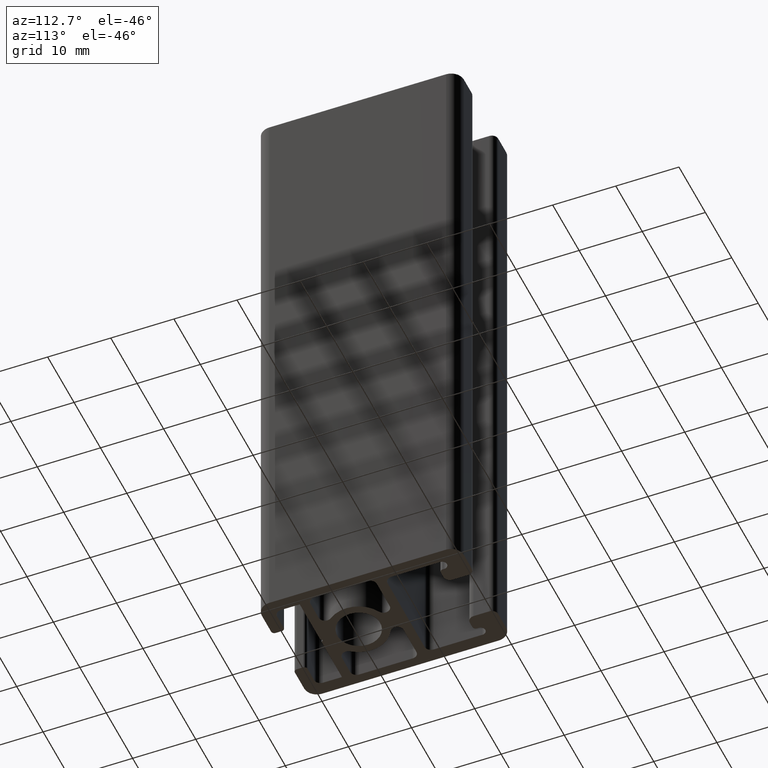
[diagram: clean part render]
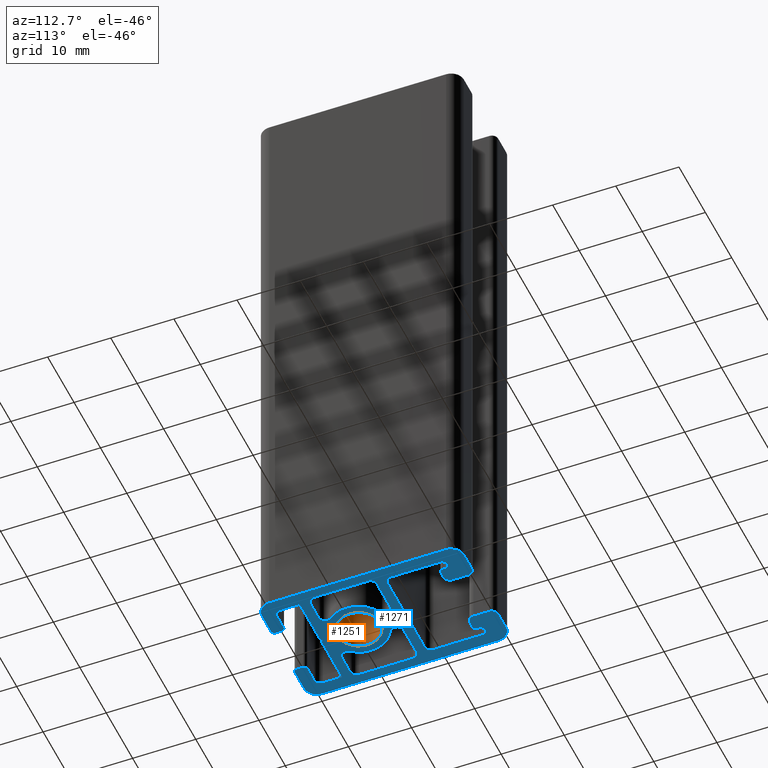
[diagram: same view with the hole feature highlighted: cylindrical wall and planar end face, labeled with their STEP entity ids]
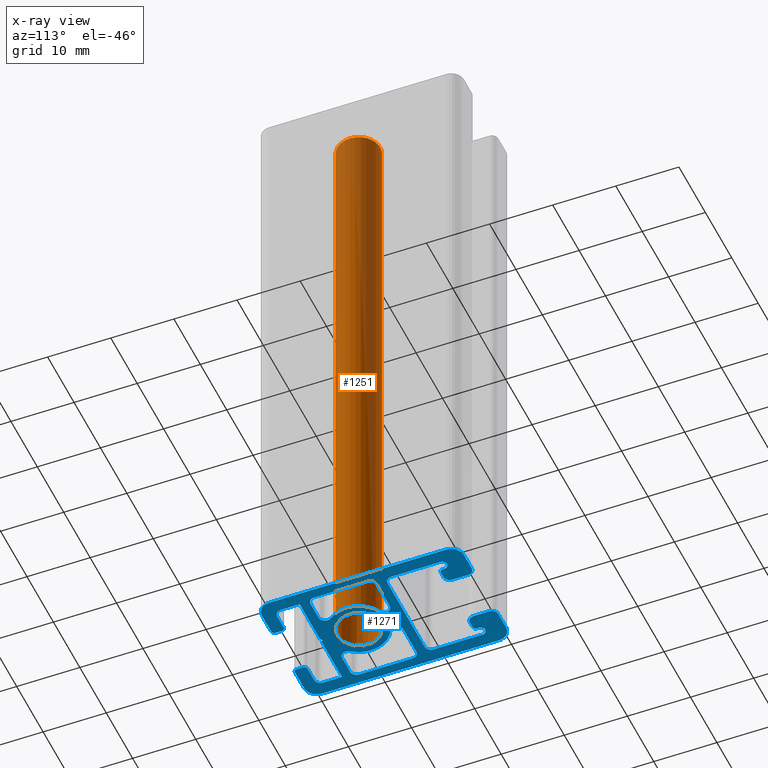
[diagram: x-ray of the same camera — body ghosted, the hole faces saturated]
A machine part, auxiliary view. The highlighted faces form one hole feature of diameter 6.8 mm: the cylindrical wall (entity #1251, orange) and its adjacent planar end face (entity #1271, blue) — they share a circular edge in the B-rep.
The next image is the same camera in x-ray (body ghosted, the hole faces saturated) — the bore reads through the body.
Wall:
#15=FACE_BOUND('',#163,.T.);
#98=FACE_OUTER_BOUND('',#162,.T.);
#162=EDGE_LOOP('',(#979));
#163=EDGE_LOOP('',(#980));
#478=CIRCLE('',#1360,3.4);
#479=CIRCLE('',#1361,3.4);
#588=VERTEX_POINT('',#2043);
#589=VERTEX_POINT('',#2045);
#753=EDGE_CURVE('',#588,#588,#478,.T.);
#754=EDGE_CURVE('',#589,#589,#479,.T.);
#979=ORIENTED_EDGE('',*,*,#753,.F.);
#980=ORIENTED_EDGE('',*,*,#754,.F.);
#1198=CYLINDRICAL_SURFACE('',#1359,3.4);
#1251=ADVANCED_FACE('',(#98,#15),#1198,.F.);
#1359=AXIS2_PLACEMENT_3D('',#2042,#1661,#1662);
#1360=AXIS2_PLACEMENT_3D('',#2044,#1663,#1664);
#1361=AXIS2_PLACEMENT_3D('',#2046,#1665,#1666);
#1661=DIRECTION('center_axis',(0.,0.,1.));
#1662=DIRECTION('ref_axis',(-1.,0.,0.));
#1663=DIRECTION('center_axis',(0.,0.,-1.));
#1664=DIRECTION('ref_axis',(-1.,0.,0.));
#1665=DIRECTION('center_axis',(0.,0.,1.));
#1666=DIRECTION('ref_axis',(-1.,0.,0.));
#2042=CARTESIAN_POINT('Origin',(0.,0.,0.));
#2043=CARTESIAN_POINT('',(3.4,-4.163799117101E-16,100.));
#2044=CARTESIAN_POINT('Origin',(0.,0.,100.));
#2045=CARTESIAN_POINT('',(3.4,4.163799117101E-16,0.));
#2046=CARTESIAN_POINT('Origin',(0.,0.,0.));
End face:
#19=FACE_BOUND('',#187,.T.);
#20=FACE_BOUND('',#188,.T.);
#21=FACE_BOUND('',#189,.T.);
#54=PLANE('',#1399);
#118=FACE_OUTER_BOUND('',#186,.T.);
#186=EDGE_LOOP('',(#1115,#1116,#1117,#1118,#1119,#1120,#1121,#1122,#1123,
#1124,#1125,#1126,#1127,#1128,#1129,#1130,#1131,#1132,#1133,#1134,#1135,
#1136,#1137,#1138,#1139,#1140,#1141,#1142,#1143,#1144,#1145,#1146,#1147,
#1148,#1149,#1150,#1151,#1152,#1153,#1154,#1155,#1156,#1157,#1158,#1159));
#187=EDGE_LOOP('',(#1160,#1161,#1162,#1163,#1164,#1165,#1166,#1167));
#188=EDGE_LOOP('',(#1168));
#189=EDGE_LOOP('',(#1169,#1170,#1171,#1172,#1173,#1174,#1175,#1176));
#194=LINE('',#1797,#317);
#198=LINE('',#1809,#321);
#202=LINE('',#1821,#325);
#206=LINE('',#1833,#329);
#210=LINE('',#1845,#333);
#216=LINE('',#1866,#339);
#220=LINE('',#1878,#343);
#224=LINE('',#1890,#347);
#227=LINE('',#1896,#350);
#230=LINE('',#1902,#353);
#233=LINE('',#1908,#356);
#236=LINE('',#1914,#359);
#239=LINE('',#1920,#362);
#243=LINE('',#1932,#366);
#248=LINE('',#1945,#371);
#252=LINE('',#1957,#375);
#256=LINE('',#1969,#379);
#260=LINE('',#1981,#383);
#264=LINE('',#1993,#387);
#268=LINE('',#2005,#391);
#274=LINE('',#2026,#397);
#278=LINE('',#2038,#401);
#283=LINE('',#2061,#406);
#287=LINE('',#2073,#410);
#291=LINE('',#2085,#414);
#293=LINE('',#2097,#416);
#296=LINE('',#2103,#419);
#301=LINE('',#2112,#424);
#308=LINE('',#2135,#431);
#311=LINE('',#2145,#434);
#312=LINE('',#2149,#435);
#317=VECTOR('',#1420,4.86893557663555);
#321=VECTOR('',#1432,8.50000000000797);
#325=VECTOR('',#1444,3.06463079328319);
#329=VECTOR('',#1456,2.50000057528015);
#333=VECTOR('',#1468,1.);
#339=VECTOR('',#1488,0.999999999999999);
#343=VECTOR('',#1500,2.50000057528016);
#347=VECTOR('',#1512,3.00000057528016);
#350=VECTOR('',#1517,7.7);
#353=VECTOR('',#1522,0.424264068711927);
#356=VECTOR('',#1527,0.424264068711929);
#359=VECTOR('',#1532,7.7);
#362=VECTOR('',#1537,3.00000057528016);
#366=VECTOR('',#1549,0.26000000000197);
#371=VECTOR('',#1562,7.76000199595284);
#375=VECTOR('',#1574,14.0000039919057);
#379=VECTOR('',#1586,7.76000199595284);
#383=VECTOR('',#1598,0.260000000001961);
#387=VECTOR('',#1610,1.00000199595495);
#391=VECTOR('',#1622,2.50000399190596);
#397=VECTOR('',#1642,2.50000399190595);
#401=VECTOR('',#1654,1.00000199595494);
#406=VECTOR('',#1679,4.86893557663555);
#410=VECTOR('',#1691,8.50000000000797);
#414=VECTOR('',#1703,3.06463079328319);
#416=VECTOR('',#1719,3.50000000000001);
#419=VECTOR('',#1724,3.00000199595299);
#424=VECTOR('',#1731,3.00000199595298);
#431=VECTOR('',#1754,28.);
#434=VECTOR('',#1767,28.);
#435=VECTOR('',#1774,3.50000000000001);
#437=CIRCLE('',#1276,4.65);
#439=CIRCLE('',#1279,0.999999999996014);
#441=CIRCLE('',#1283,0.999999999996014);
#443=CIRCLE('',#1287,0.999999999996014);
#445=CIRCLE('',#1291,0.999999999996015);
#447=CIRCLE('',#1295,0.5);
#449=CIRCLE('',#1299,0.5);
#451=CIRCLE('',#1302,0.5);
#453=CIRCLE('',#1306,0.5);
#455=CIRCLE('',#1310,0.999999424719846);
#457=CIRCLE('',#1319,0.999999424719841);
#459=CIRCLE('',#1323,0.75);
#461=CIRCLE('',#1327,0.99999800404715);
#463=CIRCLE('',#1331,0.99999800404715);
#465=CIRCLE('',#1335,0.750000000000002);
#467=CIRCLE('',#1339,0.499999999998034);
#469=CIRCLE('',#1343,0.999998004047022);
#471=CIRCLE('',#1347,0.999998004047022);
#473=CIRCLE('',#1350,0.999998004047029);
#475=CIRCLE('',#1354,0.999998004047022);
#477=CIRCLE('',#1358,0.499999999998028);
#479=CIRCLE('',#1361,3.4);
#481=CIRCLE('',#1364,0.999999999996014);
#483=CIRCLE('',#1368,0.999999999996014);
#485=CIRCLE('',#1372,0.999999999996014);
#487=CIRCLE('',#1376,0.999999999996014);
#489=CIRCLE('',#1379,4.65);
#494=CIRCLE('',#1389,2.);
#495=CIRCLE('',#1392,1.99999999999999);
#496=CIRCLE('',#1394,2.);
#497=CIRCLE('',#1397,2.);
#500=VERTEX_POINT('',#1782);
#501=VERTEX_POINT('',#1784);
#503=VERTEX_POINT('',#1790);
#505=VERTEX_POINT('',#1796);
#507=VERTEX_POINT('',#1802);
#509=VERTEX_POINT('',#1808);
#511=VERTEX_POINT('',#1814);
#513=VERTEX_POINT('',#1820);
#516=VERTEX_POINT('',#1830);
#517=VERTEX_POINT('',#1832);
#519=VERTEX_POINT('',#1838);
#521=VERTEX_POINT('',#1844);
#523=VERTEX_POINT('',#1850);
#526=VERTEX_POINT('',#1857);
#527=VERTEX_POINT('',#1859);
#529=VERTEX_POINT('',#1865);
#531=VERTEX_POINT('',#1871);
#533=VERTEX_POINT('',#1877);
#535=VERTEX_POINT('',#1883);
#537=VERTEX_POINT('',#1889);
#539=VERTEX_POINT('',#1895);
#541=VERTEX_POINT('',#1901);
#543=VERTEX_POINT('',#1907);
#545=VERTEX_POINT('',#1913);
#547=VERTEX_POINT('',#1919);
#550=VERTEX_POINT('',#1929);
#551=VERTEX_POINT('',#1931);
#553=VERTEX_POINT('',#1937);
#555=VERTEX_POINT('',#1943);
#557=VERTEX_POINT('',#1949);
#559=VERTEX_POINT('',#1955);
#561=VERTEX_POINT('',#1961);
#563=VERTEX_POINT('',#1967);
#565=VERTEX_POINT('',#1973);
#567=VERTEX_POINT('',#1979);
#569=VERTEX_POINT('',#1985);
#571=VERTEX_POINT('',#1991);
#573=VERTEX_POINT('',#1997);
#575=VERTEX_POINT('',#2003);
#577=VERTEX_POINT('',#2009);
#580=VERTEX_POINT('',#2016);
#581=VERTEX_POINT('',#2018);
#583=VERTEX_POINT('',#2024);
#585=VERTEX_POINT('',#2030);
#587=VERTEX_POINT('',#2036);
#589=VERTEX_POINT('',#2045);
#592=VERTEX_POINT('',#2051);
#593=VERTEX_POINT('',#2053);
#595=VERTEX_POINT('',#2059);
#597=VERTEX_POINT('',#2065);
#599=VERTEX_POINT('',#2071);
#601=VERTEX_POINT('',#2077);
#603=VERTEX_POINT('',#2083);
#605=VERTEX_POINT('',#2089);
#606=VERTEX_POINT('',#2096);
#608=VERTEX_POINT('',#2102);
#611=VERTEX_POINT('',#2110);
#617=VERTEX_POINT('',#2127);
#618=VERTEX_POINT('',#2129);
#619=VERTEX_POINT('',#2133);
#620=VERTEX_POINT('',#2139);
#621=VERTEX_POINT('',#2143);
#624=EDGE_CURVE('',#501,#500,#437,.T.);
#627=EDGE_CURVE('',#503,#501,#439,.T.);
#630=EDGE_CURVE('',#505,#503,#194,.T.);
#633=EDGE_CURVE('',#507,#505,#441,.T.);
#636=EDGE_CURVE('',#509,#507,#198,.T.);
#639=EDGE_CURVE('',#511,#509,#443,.T.);
#642=EDGE_CURVE('',#513,#511,#202,.T.);
#645=EDGE_CURVE('',#500,#513,#445,.T.);
#648=EDGE_CURVE('',#517,#516,#206,.T.);
#651=EDGE_CURVE('',#519,#517,#447,.T.);
#654=EDGE_CURVE('',#521,#519,#210,.T.);
#657=EDGE_CURVE('',#523,#521,#449,.T.);
#661=EDGE_CURVE('',#527,#526,#451,.T.);
#664=EDGE_CURVE('',#529,#527,#216,.T.);
#667=EDGE_CURVE('',#531,#529,#453,.T.);
#670=EDGE_CURVE('',#533,#531,#220,.T.);
#673=EDGE_CURVE('',#535,#533,#455,.T.);
#676=EDGE_CURVE('',#537,#535,#224,.T.);
#679=EDGE_CURVE('',#539,#537,#227,.T.);
#682=EDGE_CURVE('',#541,#539,#230,.T.);
#685=EDGE_CURVE('',#543,#541,#233,.T.);
#688=EDGE_CURVE('',#545,#543,#236,.T.);
#691=EDGE_CURVE('',#547,#545,#239,.T.);
#694=EDGE_CURVE('',#516,#547,#457,.T.);
#697=EDGE_CURVE('',#551,#550,#243,.T.);
#701=EDGE_CURVE('',#550,#553,#459,.T.);
#704=EDGE_CURVE('',#553,#555,#248,.T.);
#707=EDGE_CURVE('',#555,#557,#461,.T.);
#710=EDGE_CURVE('',#557,#559,#252,.T.);
#713=EDGE_CURVE('',#559,#561,#463,.T.);
#716=EDGE_CURVE('',#561,#563,#256,.T.);
#719=EDGE_CURVE('',#563,#565,#465,.T.);
#722=EDGE_CURVE('',#565,#567,#260,.T.);
#725=EDGE_CURVE('',#567,#569,#467,.T.);
#728=EDGE_CURVE('',#569,#571,#264,.T.);
#731=EDGE_CURVE('',#571,#573,#469,.T.);
#734=EDGE_CURVE('',#573,#575,#268,.T.);
#737=EDGE_CURVE('',#575,#577,#471,.T.);
#740=EDGE_CURVE('',#581,#580,#473,.T.);
#744=EDGE_CURVE('',#580,#583,#274,.T.);
#747=EDGE_CURVE('',#583,#585,#475,.T.);
#750=EDGE_CURVE('',#585,#587,#278,.T.);
#752=EDGE_CURVE('',#587,#551,#477,.T.);
#754=EDGE_CURVE('',#589,#589,#479,.T.);
#757=EDGE_CURVE('',#593,#592,#481,.T.);
#761=EDGE_CURVE('',#592,#595,#283,.T.);
#764=EDGE_CURVE('',#595,#597,#483,.T.);
#767=EDGE_CURVE('',#597,#599,#287,.T.);
#770=EDGE_CURVE('',#599,#601,#485,.T.);
#773=EDGE_CURVE('',#601,#603,#291,.T.);
#776=EDGE_CURVE('',#603,#605,#487,.T.);
#778=EDGE_CURVE('',#605,#593,#489,.T.);
#779=EDGE_CURVE('',#606,#523,#293,.T.);
#782=EDGE_CURVE('',#608,#581,#296,.T.);
#787=EDGE_CURVE('',#577,#611,#301,.T.);
#796=EDGE_CURVE('',#618,#617,#494,.T.);
#799=EDGE_CURVE('',#617,#619,#308,.T.);
#800=EDGE_CURVE('',#619,#608,#495,.T.);
#802=EDGE_CURVE('',#611,#620,#496,.T.);
#804=EDGE_CURVE('',#620,#621,#311,.T.);
#805=EDGE_CURVE('',#621,#606,#497,.T.);
#806=EDGE_CURVE('',#526,#618,#312,.T.);
#1115=ORIENTED_EDGE('',*,*,#661,.T.);
#1116=ORIENTED_EDGE('',*,*,#806,.T.);
#1117=ORIENTED_EDGE('',*,*,#796,.T.);
#1118=ORIENTED_EDGE('',*,*,#799,.T.);
#1119=ORIENTED_EDGE('',*,*,#800,.T.);
#1120=ORIENTED_EDGE('',*,*,#782,.T.);
#1121=ORIENTED_EDGE('',*,*,#740,.T.);
#1122=ORIENTED_EDGE('',*,*,#744,.T.);
#1123=ORIENTED_EDGE('',*,*,#747,.T.);
#1124=ORIENTED_EDGE('',*,*,#750,.T.);
#1125=ORIENTED_EDGE('',*,*,#752,.T.);
#1126=ORIENTED_EDGE('',*,*,#697,.T.);
#1127=ORIENTED_EDGE('',*,*,#701,.T.);
#1128=ORIENTED_EDGE('',*,*,#704,.T.);
#1129=ORIENTED_EDGE('',*,*,#707,.T.);
#1130=ORIENTED_EDGE('',*,*,#710,.T.);
#1131=ORIENTED_EDGE('',*,*,#713,.T.);
#1132=ORIENTED_EDGE('',*,*,#716,.T.);
#1133=ORIENTED_EDGE('',*,*,#719,.T.);
#1134=ORIENTED_EDGE('',*,*,#722,.T.);
#1135=ORIENTED_EDGE('',*,*,#725,.T.);
#1136=ORIENTED_EDGE('',*,*,#728,.T.);
#1137=ORIENTED_EDGE('',*,*,#731,.T.);
#1138=ORIENTED_EDGE('',*,*,#734,.T.);
#1139=ORIENTED_EDGE('',*,*,#737,.T.);
#1140=ORIENTED_EDGE('',*,*,#787,.T.);
#1141=ORIENTED_EDGE('',*,*,#802,.T.);
#1142=ORIENTED_EDGE('',*,*,#804,.T.);
#1143=ORIENTED_EDGE('',*,*,#805,.T.);
#1144=ORIENTED_EDGE('',*,*,#779,.T.);
#1145=ORIENTED_EDGE('',*,*,#657,.T.);
#1146=ORIENTED_EDGE('',*,*,#654,.T.);
#1147=ORIENTED_EDGE('',*,*,#651,.T.);
#1148=ORIENTED_EDGE('',*,*,#648,.T.);
#1149=ORIENTED_EDGE('',*,*,#694,.T.);
#1150=ORIENTED_EDGE('',*,*,#691,.T.);
#1151=ORIENTED_EDGE('',*,*,#688,.T.);
#1152=ORIENTED_EDGE('',*,*,#685,.T.);
#1153=ORIENTED_EDGE('',*,*,#682,.T.);
#1154=ORIENTED_EDGE('',*,*,#679,.T.);
#1155=ORIENTED_EDGE('',*,*,#676,.T.);
#1156=ORIENTED_EDGE('',*,*,#673,.T.);
#1157=ORIENTED_EDGE('',*,*,#670,.T.);
#1158=ORIENTED_EDGE('',*,*,#667,.T.);
#1159=ORIENTED_EDGE('',*,*,#664,.T.);
#1160=ORIENTED_EDGE('',*,*,#624,.T.);
#1161=ORIENTED_EDGE('',*,*,#645,.T.);
#1162=ORIENTED_EDGE('',*,*,#642,.T.);
#1163=ORIENTED_EDGE('',*,*,#639,.T.);
#1164=ORIENTED_EDGE('',*,*,#636,.T.);
#1165=ORIENTED_EDGE('',*,*,#633,.T.);
#1166=ORIENTED_EDGE('',*,*,#630,.T.);
#1167=ORIENTED_EDGE('',*,*,#627,.T.);
#1168=ORIENTED_EDGE('',*,*,#754,.T.);
#1169=ORIENTED_EDGE('',*,*,#757,.T.);
#1170=ORIENTED_EDGE('',*,*,#761,.T.);
#1171=ORIENTED_EDGE('',*,*,#764,.T.);
#1172=ORIENTED_EDGE('',*,*,#767,.T.);
#1173=ORIENTED_EDGE('',*,*,#770,.T.);
#1174=ORIENTED_EDGE('',*,*,#773,.T.);
#1175=ORIENTED_EDGE('',*,*,#776,.T.);
#1176=ORIENTED_EDGE('',*,*,#778,.T.);
#1271=ADVANCED_FACE('',(#118,#19,#20,#21),#54,.F.);
#1276=AXIS2_PLACEMENT_3D('',#1785,#1407,#1408);
#1279=AXIS2_PLACEMENT_3D('',#1791,#1414,#1415);
#1283=AXIS2_PLACEMENT_3D('',#1803,#1426,#1427);
#1287=AXIS2_PLACEMENT_3D('',#1815,#1438,#1439);
#1291=AXIS2_PLACEMENT_3D('',#1825,#1450,#1451);
#1295=AXIS2_PLACEMENT_3D('',#1839,#1462,#1463);
#1299=AXIS2_PLACEMENT_3D('',#1851,#1474,#1475);
#1302=AXIS2_PLACEMENT_3D('',#1860,#1482,#1483);
#1306=AXIS2_PLACEMENT_3D('',#1872,#1494,#1495);
#1310=AXIS2_PLACEMENT_3D('',#1884,#1506,#1507);
#1319=AXIS2_PLACEMENT_3D('',#1924,#1543,#1544);
#1323=AXIS2_PLACEMENT_3D('',#1939,#1556,#1557);
#1327=AXIS2_PLACEMENT_3D('',#1951,#1568,#1569);
#1331=AXIS2_PLACEMENT_3D('',#1963,#1580,#1581);
#1335=AXIS2_PLACEMENT_3D('',#1975,#1592,#1593);
#1339=AXIS2_PLACEMENT_3D('',#1987,#1604,#1605);
#1343=AXIS2_PLACEMENT_3D('',#1999,#1616,#1617);
#1347=AXIS2_PLACEMENT_3D('',#2011,#1628,#1629);
#1350=AXIS2_PLACEMENT_3D('',#2019,#1635,#1636);
#1354=AXIS2_PLACEMENT_3D('',#2032,#1648,#1649);
#1358=AXIS2_PLACEMENT_3D('',#2041,#1659,#1660);
#1361=AXIS2_PLACEMENT_3D('',#2046,#1665,#1666);
#1364=AXIS2_PLACEMENT_3D('',#2054,#1672,#1673);
#1368=AXIS2_PLACEMENT_3D('',#2067,#1685,#1686);
#1372=AXIS2_PLACEMENT_3D('',#2079,#1697,#1698);
#1376=AXIS2_PLACEMENT_3D('',#2091,#1709,#1710);
#1379=AXIS2_PLACEMENT_3D('',#2094,#1715,#1716);
#1389=AXIS2_PLACEMENT_3D('',#2130,#1748,#1749);
#1392=AXIS2_PLACEMENT_3D('',#2137,#1757,#1758);
#1394=AXIS2_PLACEMENT_3D('',#2141,#1762,#1763);
#1397=AXIS2_PLACEMENT_3D('',#2147,#1770,#1771);
#1399=AXIS2_PLACEMENT_3D('',#2150,#1775,#1776);
#1407=DIRECTION('center_axis',(0.,0.,-1.));
#1408=DIRECTION('ref_axis',(0.785021098535208,-0.619469026549815,0.));
#1414=DIRECTION('center_axis',(0.,0.,1.));
#1415=DIRECTION('ref_axis',(0.,-1.,0.));
#1420=DIRECTION('',(-1.,-9.12086847033063E-16,0.));
#1426=DIRECTION('center_axis',(0.,0.,1.));
#1427=DIRECTION('ref_axis',(-1.,0.,0.));
#1432=DIRECTION('',(5.2245789394076E-16,1.,0.));
#1438=DIRECTION('center_axis',(0.,0.,1.));
#1439=DIRECTION('ref_axis',(-2.22044604925917E-15,1.,0.));
#1444=DIRECTION('',(1.,-7.24539495627633E-16,0.));
#1450=DIRECTION('center_axis',(0.,0.,1.));
#1451=DIRECTION('ref_axis',(0.78502109853521,-0.619469026549812,0.));
#1456=DIRECTION('',(1.,0.,0.));
#1462=DIRECTION('center_axis',(0.,0.,-1.));
#1463=DIRECTION('ref_axis',(0.,-1.,0.));
#1468=DIRECTION('',(2.22044604925031E-15,1.,0.));
#1474=DIRECTION('center_axis',(0.,0.,-1.));
#1475=DIRECTION('ref_axis',(1.,4.44089209850062E-15,0.));
#1482=DIRECTION('center_axis',(0.,0.,-1.));
#1483=DIRECTION('ref_axis',(-8.88178419700172E-15,1.,0.));
#1488=DIRECTION('',(0.,-1.,0.));
#1494=DIRECTION('center_axis',(0.,0.,-1.));
#1495=DIRECTION('ref_axis',(-1.,0.,0.));
#1500=DIRECTION('',(1.,8.88178215319602E-16,0.));
#1506=DIRECTION('center_axis',(0.,0.,1.));
#1507=DIRECTION('ref_axis',(-1.,0.,0.));
#1512=DIRECTION('',(0.,-1.,0.));
#1517=DIRECTION('',(-1.,0.,0.));
#1522=DIRECTION('',(-0.707106781186545,-0.70710678118655,0.));
#1527=DIRECTION('',(-0.707106781186548,0.707106781186548,0.));
#1532=DIRECTION('',(-1.,1.44184808392878E-16,0.));
#1537=DIRECTION('',(1.11022281172877E-15,1.,0.));
#1543=DIRECTION('center_axis',(0.,0.,1.));
#1544=DIRECTION('ref_axis',(-1.1102236633148E-15,-1.,0.));
#1549=DIRECTION('',(-1.7080354224873E-14,1.,0.));
#1556=DIRECTION('center_axis',(0.,0.,1.));
#1557=DIRECTION('ref_axis',(1.,5.92118946466751E-15,0.));
#1562=DIRECTION('',(5.72279762404279E-16,-1.,0.));
#1568=DIRECTION('center_axis',(0.,0.,1.));
#1569=DIRECTION('ref_axis',(-1.,0.,0.));
#1574=DIRECTION('',(1.,-6.34412976034606E-16,0.));
#1580=DIRECTION('center_axis',(0.,0.,1.));
#1581=DIRECTION('ref_axis',(0.,-1.,0.));
#1586=DIRECTION('',(7.15349703005349E-16,1.,0.));
#1592=DIRECTION('center_axis',(0.,0.,1.));
#1593=DIRECTION('ref_axis',(1.,0.,0.));
#1598=DIRECTION('',(-4.2700885562184E-15,-1.,0.));
#1604=DIRECTION('center_axis',(0.,0.,-1.));
#1605=DIRECTION('ref_axis',(-8.88178419703631E-15,1.,0.));
#1610=DIRECTION('',(-1.,0.,0.));
#1616=DIRECTION('center_axis',(0.,0.,-1.));
#1617=DIRECTION('ref_axis',(1.,2.22045048116506E-15,0.));
#1622=DIRECTION('',(8.88177001492498E-16,1.,0.));
#1628=DIRECTION('center_axis',(0.,0.,-1.));
#1629=DIRECTION('ref_axis',(1.11022524058254E-14,-1.,0.));
#1635=DIRECTION('center_axis',(0.,0.,-1.));
#1636=DIRECTION('ref_axis',(-1.,0.,0.));
#1642=DIRECTION('',(-3.55270800597E-15,-1.,0.));
#1648=DIRECTION('center_axis',(0.,0.,-1.));
#1649=DIRECTION('ref_axis',(0.,1.,0.));
#1654=DIRECTION('',(-1.,0.,0.));
#1659=DIRECTION('center_axis',(0.,0.,-1.));
#1660=DIRECTION('ref_axis',(1.,0.,0.));
#1665=DIRECTION('center_axis',(0.,0.,1.));
#1666=DIRECTION('ref_axis',(-1.,0.,0.));
#1672=DIRECTION('center_axis',(0.,0.,1.));
#1673=DIRECTION('ref_axis',(-0.465675119180581,0.88495575221372,0.));
#1679=DIRECTION('',(-1.,-9.12086847033063E-16,0.));
#1685=DIRECTION('center_axis',(0.,0.,1.));
#1686=DIRECTION('ref_axis',(0.,-1.,0.));
#1691=DIRECTION('',(0.,-1.,0.));
#1697=DIRECTION('center_axis',(0.,0.,1.));
#1698=DIRECTION('ref_axis',(1.,0.,0.));
#1703=DIRECTION('',(1.,7.24539495627631E-16,0.));
#1709=DIRECTION('center_axis',(0.,0.,1.));
#1710=DIRECTION('ref_axis',(0.,1.,0.));
#1715=DIRECTION('center_axis',(0.,0.,-1.));
#1716=DIRECTION('ref_axis',(-0.465675119180583,0.884955752213719,0.));
#1719=DIRECTION('',(-1.,0.,0.));
#1724=DIRECTION('',(1.,0.,0.));
#1731=DIRECTION('',(1.,0.,0.));
#1748=DIRECTION('center_axis',(0.,0.,-1.));
#1749=DIRECTION('ref_axis',(1.,1.11022302462516E-15,0.));
#1754=DIRECTION('',(-1.58603289232165E-16,1.,0.));
#1757=DIRECTION('center_axis',(0.,0.,-1.));
#1758=DIRECTION('ref_axis',(-2.7755575615629E-15,-1.,0.));
#1762=DIRECTION('center_axis',(0.,0.,-1.));
#1763=DIRECTION('ref_axis',(-1.,-1.11022302462516E-15,0.));
#1767=DIRECTION('',(1.18952466924124E-16,-1.,0.));
#1770=DIRECTION('center_axis',(0.,0.,-1.));
#1771=DIRECTION('ref_axis',(-1.11022302462516E-15,1.,0.));
#1774=DIRECTION('',(-1.,0.,0.));
#1775=DIRECTION('center_axis',(0.,0.,1.));
#1776=DIRECTION('ref_axis',(1.,0.,0.));
#1782=CARTESIAN_POINT('',(3.65034810818872,-2.88053097345664,0.));
#1784=CARTESIAN_POINT('',(2.16538930418971,4.1150442477938,0.));
#1785=CARTESIAN_POINT('Origin',(0.,0.,0.));
#1790=CARTESIAN_POINT('',(2.63106442336844,6.,0.));
#1791=CARTESIAN_POINT('Origin',(2.63106442336844,5.00000000000399,0.));
#1796=CARTESIAN_POINT('',(7.50000000000399,6.,0.));
#1797=CARTESIAN_POINT('',(1.31553221168422,6.,0.));
#1802=CARTESIAN_POINT('',(8.5,5.00000000000399,0.));
#1803=CARTESIAN_POINT('Origin',(7.50000000000399,5.00000000000399,0.));
#1808=CARTESIAN_POINT('',(8.5,-3.50000000000399,0.));
#1809=CARTESIAN_POINT('',(8.5,4.50000000000199,0.));
#1814=CARTESIAN_POINT('',(7.50000000000399,-4.5,0.));
#1815=CARTESIAN_POINT('Origin',(7.50000000000398,-3.50000000000399,0.));
#1820=CARTESIAN_POINT('',(4.4353692067208,-4.5,0.));
#1821=CARTESIAN_POINT('',(3.75000000000199,-4.5,0.));
#1825=CARTESIAN_POINT('Origin',(4.4353692067208,-3.50000000000398,0.));
#1830=CARTESIAN_POINT('',(7.00000057528015,-10.,0.));
#1832=CARTESIAN_POINT('',(4.5,-10.,0.));
#1833=CARTESIAN_POINT('',(3.50000028764008,-10.,0.));
#1838=CARTESIAN_POINT('',(4.,-10.5,0.));
#1839=CARTESIAN_POINT('Origin',(4.5,-10.5,0.));
#1844=CARTESIAN_POINT('',(4.,-11.5,0.));
#1845=CARTESIAN_POINT('',(4.00000000000002,-3.25000000000001,0.));
#1850=CARTESIAN_POINT('',(4.49999999999999,-12.,0.));
#1851=CARTESIAN_POINT('Origin',(4.5,-11.5,0.));
#1857=CARTESIAN_POINT('',(-4.49999999999999,-12.,0.));
#1859=CARTESIAN_POINT('',(-4.,-11.5,0.));
#1860=CARTESIAN_POINT('Origin',(-4.5,-11.5,0.));
#1865=CARTESIAN_POINT('',(-4.,-10.5,0.));
#1866=CARTESIAN_POINT('',(-4.,-3.75,0.));
#1871=CARTESIAN_POINT('',(-4.5,-10.,0.));
#1872=CARTESIAN_POINT('Origin',(-4.5,-10.5,0.));
#1877=CARTESIAN_POINT('',(-7.00000057528016,-10.,0.));
#1878=CARTESIAN_POINT('',(-2.24999999999999,-10.,0.));
#1883=CARTESIAN_POINT('',(-8.,-9.00000057528016,0.));
#1884=CARTESIAN_POINT('Origin',(-7.00000057528016,-9.00000057528016,0.));
#1889=CARTESIAN_POINT('',(-8.,-6.,0.));
#1890=CARTESIAN_POINT('',(-8.,-2.50000028764008,0.));
#1895=CARTESIAN_POINT('',(-0.3,-6.,0.));
#1896=CARTESIAN_POINT('',(-4.,-6.,0.));
#1901=CARTESIAN_POINT('',(-2.22044604925031E-15,-5.7,0.));
#1902=CARTESIAN_POINT('',(2.275,-3.42499999999998,0.));
#1907=CARTESIAN_POINT('',(0.299999999999998,-6.,0.));
#1908=CARTESIAN_POINT('',(-2.425,-3.275,0.));
#1913=CARTESIAN_POINT('',(8.,-6.,0.));
#1914=CARTESIAN_POINT('',(0.149999999999998,-6.,0.));
#1919=CARTESIAN_POINT('',(7.99999999999999,-9.00000057528016,0.));
#1920=CARTESIAN_POINT('',(8.,-1.00000000000001,0.));
#1924=CARTESIAN_POINT('Origin',(7.00000057528015,-9.00000057528016,0.));
#1929=CARTESIAN_POINT('',(-6.5,16.26,0.));
#1931=CARTESIAN_POINT('',(-6.5,15.999999999998,0.));
#1932=CARTESIAN_POINT('',(-6.4999999999999,10.1299999999999,0.));
#1937=CARTESIAN_POINT('',(-8.,16.26,0.));
#1939=CARTESIAN_POINT('Origin',(-7.25,16.26,0.));
#1943=CARTESIAN_POINT('',(-8.,8.49999800404715,0.));
#1945=CARTESIAN_POINT('',(-8.,6.24999900202357,0.));
#1949=CARTESIAN_POINT('',(-7.00000199595285,7.50000000000001,0.));
#1951=CARTESIAN_POINT('Origin',(-7.00000199595285,8.49999800404715,0.));
#1955=CARTESIAN_POINT('',(7.00000199595285,7.5,0.));
#1957=CARTESIAN_POINT('',(3.50000099797642,7.5,0.));
#1961=CARTESIAN_POINT('',(8.,8.49999800404715,0.));
#1963=CARTESIAN_POINT('Origin',(7.00000199595285,8.49999800404715,0.));
#1967=CARTESIAN_POINT('',(8.,16.26,0.));
#1969=CARTESIAN_POINT('',(8.,10.13,0.));
#1973=CARTESIAN_POINT('',(6.5,16.26,0.));
#1975=CARTESIAN_POINT('Origin',(7.25,16.26,0.));
#1979=CARTESIAN_POINT('',(6.5,15.999999999998,0.));
#1981=CARTESIAN_POINT('',(6.49999999999997,9.999999999999,0.));
#1985=CARTESIAN_POINT('',(6.00000000000198,15.5,0.));
#1987=CARTESIAN_POINT('Origin',(6.00000000000197,15.999999999998,0.));
#1991=CARTESIAN_POINT('',(4.99999800404702,15.5,0.));
#1993=CARTESIAN_POINT('',(2.49999900202351,15.5,0.));
#1997=CARTESIAN_POINT('',(4.,16.499998004047,0.));
#1999=CARTESIAN_POINT('Origin',(4.99999800404702,16.499998004047,0.));
#2003=CARTESIAN_POINT('',(4.,19.000001995953,0.));
#2005=CARTESIAN_POINT('',(4.,11.5000009979765,0.));
#2009=CARTESIAN_POINT('',(4.99999800404701,20.,0.));
#2011=CARTESIAN_POINT('Origin',(4.99999800404703,19.000001995953,0.));
#2016=CARTESIAN_POINT('',(-3.99999999999999,19.000001995953,0.));
#2018=CARTESIAN_POINT('',(-4.99999800404701,20.,0.));
#2019=CARTESIAN_POINT('Origin',(-4.99999800404702,19.000001995953,0.));
#2024=CARTESIAN_POINT('',(-4.,16.499998004047,0.));
#2026=CARTESIAN_POINT('',(-4.00000000000002,10.2499990020235,0.));
#2030=CARTESIAN_POINT('',(-4.99999800404702,15.5,0.));
#2032=CARTESIAN_POINT('Origin',(-4.99999800404702,16.499998004047,0.));
#2036=CARTESIAN_POINT('',(-6.00000000000197,15.5,0.));
#2038=CARTESIAN_POINT('',(-3.00000000000098,15.5,0.));
#2041=CARTESIAN_POINT('Origin',(-6.00000000000197,15.999999999998,0.));
#2045=CARTESIAN_POINT('',(3.4,4.163799117101E-16,0.));
#2046=CARTESIAN_POINT('Origin',(0.,0.,0.));
#2051=CARTESIAN_POINT('',(-2.63106442336844,6.,0.));
#2053=CARTESIAN_POINT('',(-2.16538930418971,4.1150442477938,0.));
#2054=CARTESIAN_POINT('Origin',(-2.63106442336844,5.00000000000399,0.));
#2059=CARTESIAN_POINT('',(-7.50000000000399,6.,0.));
#2061=CARTESIAN_POINT('',(-3.750000000002,6.,0.));
#2065=CARTESIAN_POINT('',(-8.5,5.00000000000399,0.));
#2067=CARTESIAN_POINT('Origin',(-7.50000000000399,5.00000000000399,0.));
#2071=CARTESIAN_POINT('',(-8.5,-3.50000000000399,0.));
#2073=CARTESIAN_POINT('',(-8.5,0.249999999998005,0.));
#2077=CARTESIAN_POINT('',(-7.50000000000399,-4.5,0.));
#2079=CARTESIAN_POINT('Origin',(-7.50000000000399,-3.50000000000399,0.));
#2083=CARTESIAN_POINT('',(-4.43536920672079,-4.5,0.));
#2085=CARTESIAN_POINT('',(-2.21768460336039,-4.5,0.));
#2089=CARTESIAN_POINT('',(-3.65034810818872,-2.88053097345664,0.));
#2091=CARTESIAN_POINT('Origin',(-4.43536920672079,-3.50000000000399,0.));
#2094=CARTESIAN_POINT('Origin',(0.,0.,0.));
#2096=CARTESIAN_POINT('',(8.,-12.,0.));
#2097=CARTESIAN_POINT('',(-4.,-12.,0.));
#2102=CARTESIAN_POINT('',(-8.00000000000001,20.,0.));
#2103=CARTESIAN_POINT('',(4.,20.,0.));
#2110=CARTESIAN_POINT('',(8.,20.,0.));
#2112=CARTESIAN_POINT('',(4.,20.,0.));
#2127=CARTESIAN_POINT('',(-10.,-10.,0.));
#2129=CARTESIAN_POINT('',(-8.,-12.,0.));
#2130=CARTESIAN_POINT('Origin',(-8.,-10.,0.));
#2133=CARTESIAN_POINT('',(-10.,18.,0.));
#2135=CARTESIAN_POINT('',(-10.,11.,0.));
#2137=CARTESIAN_POINT('Origin',(-8.00000000000001,18.,0.));
#2139=CARTESIAN_POINT('',(10.,18.,0.));
#2141=CARTESIAN_POINT('Origin',(8.,18.,0.));
#2143=CARTESIAN_POINT('',(10.,-10.,0.));
#2145=CARTESIAN_POINT('',(10.,-3.,0.));
#2147=CARTESIAN_POINT('Origin',(8.,-10.,0.));
#2149=CARTESIAN_POINT('',(-4.,-12.,0.));
#2150=CARTESIAN_POINT('Origin',(-1.11022302462516E-15,4.,0.));